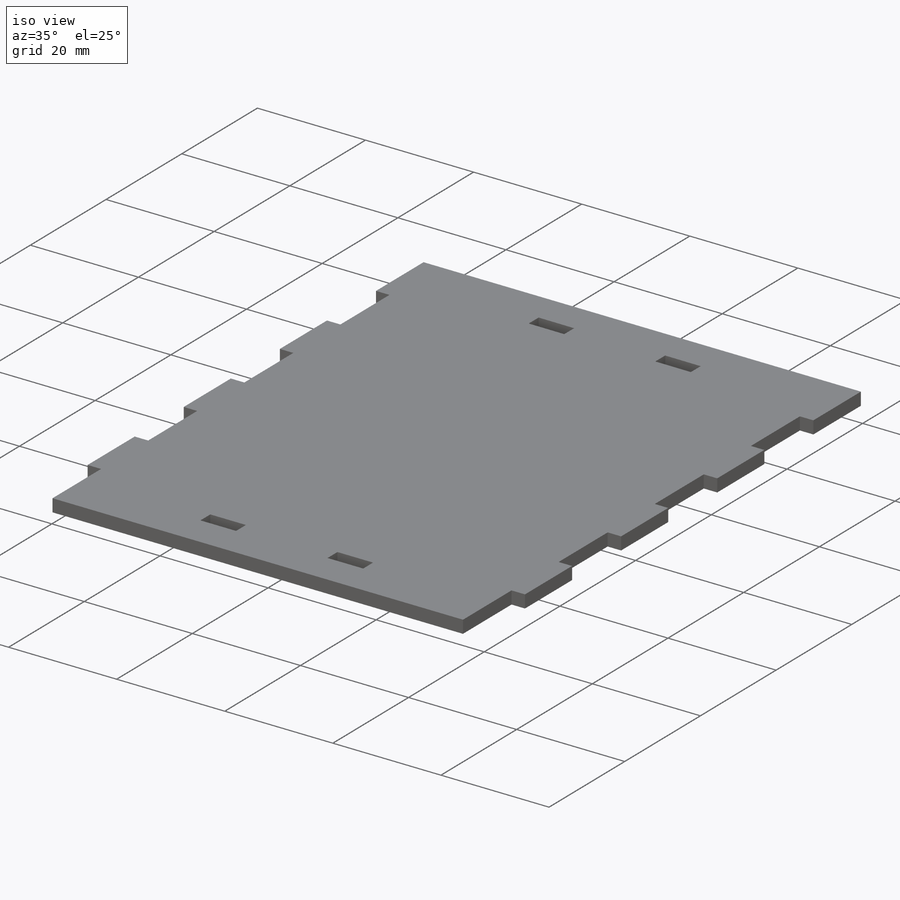
[diagram: iso view]
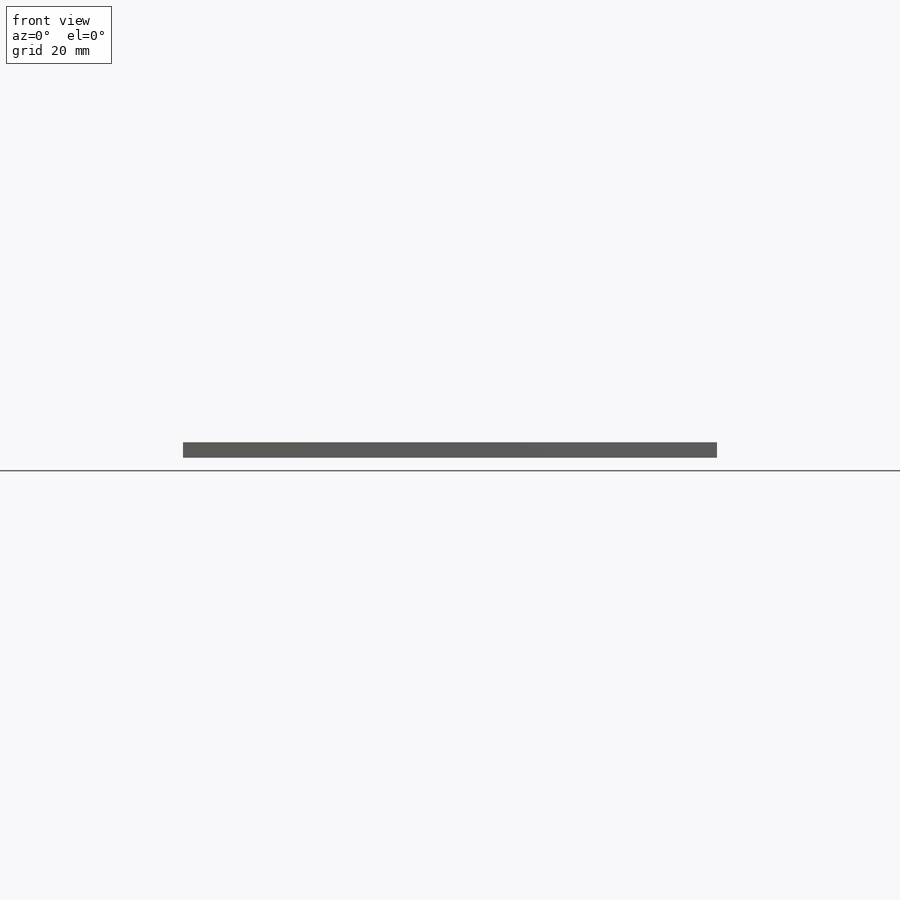
[diagram: front view]
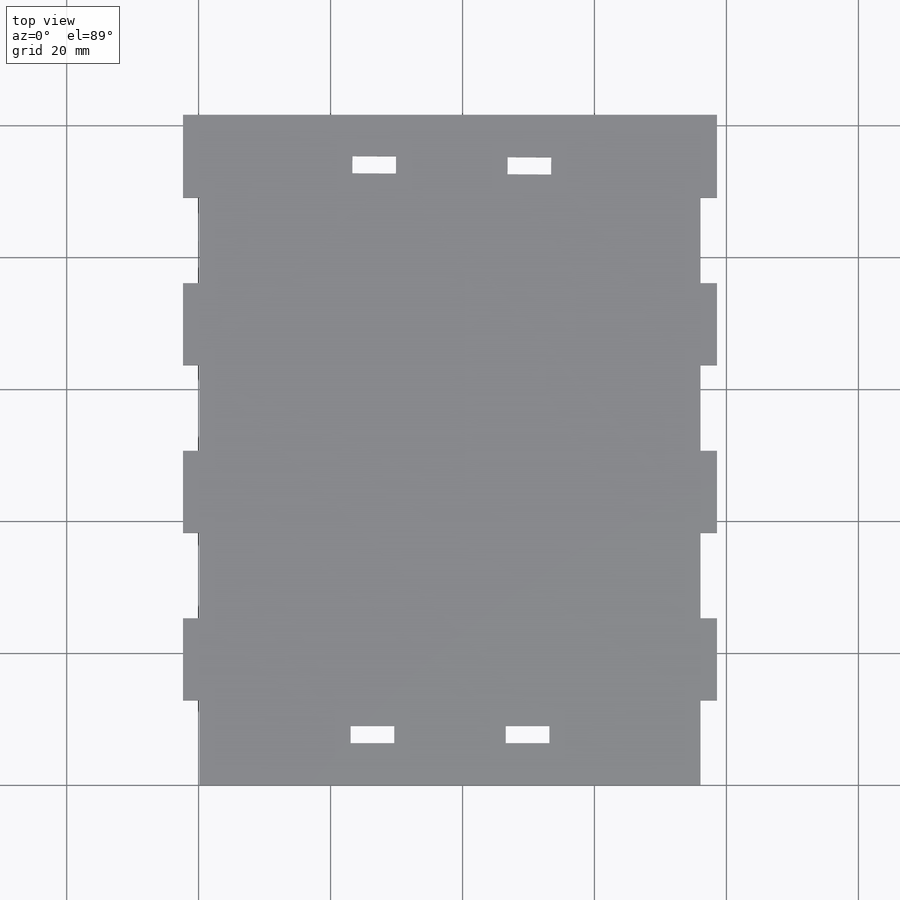
[diagram: top view]
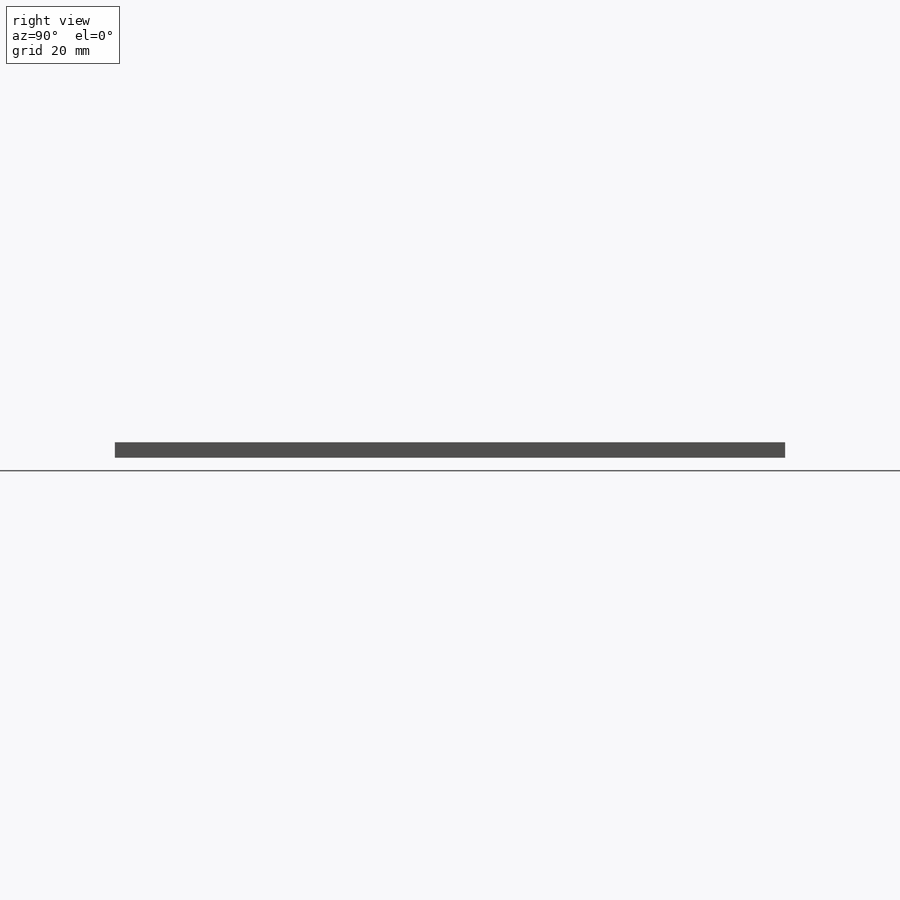
[diagram: right view]
SOLIDWORKS PART (.sldprt)
format: sldprt  version: not decoded by parser v0  size: 1,034,752 bytes
history: native  units: mm
features: sketch x5, cut_extrude x4, material x1, extrude x1 (+11 scaffold rows collapsed)
feature tree (22):
  scaffold x11  (default folders/planes/origin — collapsed)
  material  "Material <not specified>"
  sketch  "Sketch1"  dims[c1.D1=76.2mm c1.D2=12.7mm c1.D3=12.7mm c1.D4=12.7mm c1.D5=12.7mm c1.D6=12.7mm c1.D7=12.7mm c1.D8=12.7mm c1.D9=12.7mm c1.D10=12.7mm c1.D11=12.7mm c1.D12=12.7mm c1.D13=12.7mm c1.D14=12.7mm c1.D15=12.7mm c1.D16=12.7mm c1.D17=12.7mm c1.D18=~86.607948mm c1.D19=~5.808007mm c2.D1=38.1mm c2.D2=12.7mm c2.D3=2.4892mm]
  extrude  "Boss-Extrude1"  Depth=2.3622mm
  sketch  "Sketch2"  dims[D1=0.127mm]
  cut_extrude  "Cut-Extrude1"  [1 undecoded]
  sketch  "Sketch3"  dims[D1=6.35mm D2=6.604mm D3=2.6162mm D4=25.4mm]
  cut_extrude  "Cut-Extrude2"  [1 undecoded]
  sketch  "Sketch5"
  cut_extrude  "Cut-Extrude3"  Depth=0.127mm
  sketch  "Sketch6"
  cut_extrude  "Cut-Extrude4"  Depth=0.127mm
decode coverage: 6 of 10 modeling features carry decoded parameters
note: ~ marks probable driven/reference dimensions
note: 2 parameter values undecoded
note: suppression state not decoded; provenance and decode notes live in map.json
